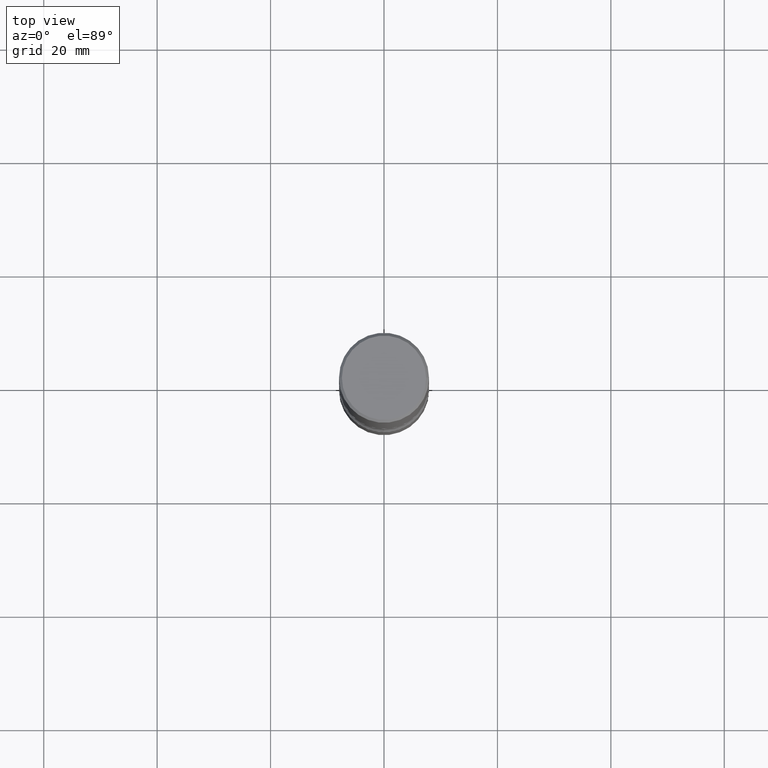
[diagram: clean part render]
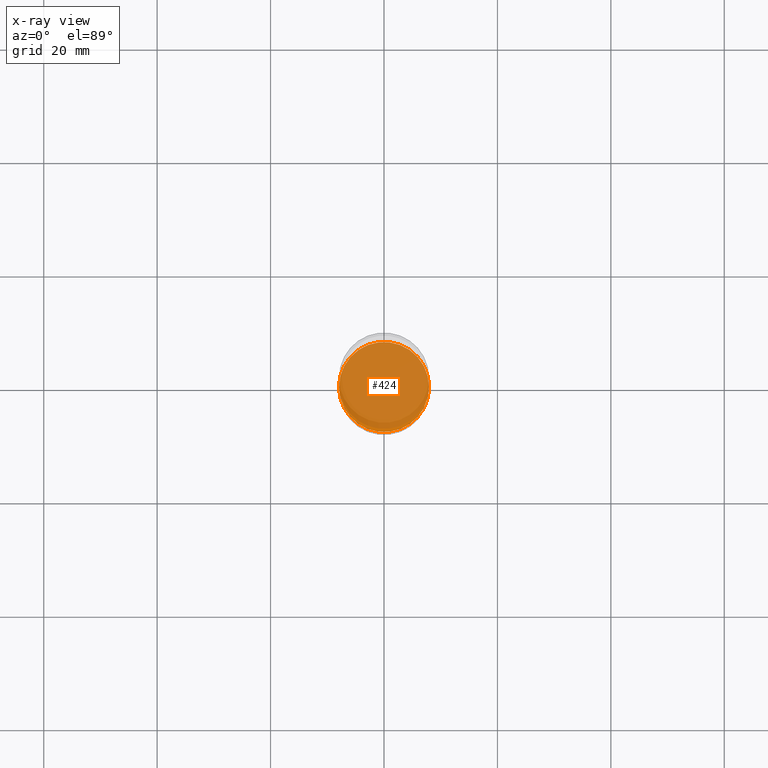
[diagram: x-ray — body ghosted, one internal face saturated and labeled with its STEP entity id]
A machine part, top view, then the same camera in x-ray: the body is ghosted and one INTERNAL B-rep face — a face not visible from any outside direction — is saturated and labeled: STEP entity #424.
In plain terms, the highlighted planar face has unit normal (0, -0, -1).
Its self-contained STEP definition (entity closure, byte-faithful):
#73 = DIRECTION ( 'NONE',  ( 1.000000000000000000, -6.982962677686265133E-15, 0.000000000000000000 ) ) ;
#101 = DIRECTION ( 'NONE',  ( -2.445468806185136597E-29, 3.491481338843145583E-15, 1.000000000000000000 ) ) ;
#105 = DIRECTION ( 'NONE',  ( 2.438088387897960049E-29, -3.491481338843145188E-15, -1.000000000000000000 ) ) ;
#127 = ORIENTED_EDGE ( 'NONE', *, *, #532, .T. ) ;
#151 = DIRECTION ( 'NONE',  ( -1.000000000000000000, 6.982962677686265922E-15, -4.876176775795935793E-29 ) ) ;
#234 = CARTESIAN_POINT ( 'NONE',  ( 9.170508023194261117E-29, -1.309305502066179584E-14, -3.749999999999999556 ) ) ;
#238 = ORIENTED_EDGE ( 'NONE', *, *, #415, .T. ) ;
#255 = AXIS2_PLACEMENT_3D ( 'NONE', #234, #105, #151 ) ;
#267 = PLANE ( 'NONE',  #255 ) ;
#289 = CARTESIAN_POINT ( 'NONE',  ( 9.170508023194261117E-29, -1.309305502066179584E-14, -3.749999999999999556 ) ) ;
#291 = EDGE_LOOP ( 'NONE', ( #127, #238 ) ) ;
#352 = DIRECTION ( 'NONE',  ( 1.000000000000000000, -6.982962677686265133E-15, 0.000000000000000000 ) ) ;
#378 = AXIS2_PLACEMENT_3D ( 'NONE', #554, #101, #352 ) ;
#398 = CIRCLE ( 'NONE', #444, 0.3125000000000001665 ) ;
#408 = CARTESIAN_POINT ( 'NONE',  ( 0.3125000000000001665, -1.527523085743875418E-14, -3.749999999999999556 ) ) ;
#411 = VERTEX_POINT ( 'NONE', #437 ) ;
#415 = EDGE_CURVE ( 'NONE', #411, #468, #544, .T. ) ;
#424 = ADVANCED_FACE ( 'NONE', ( #496 ), #267, .F. ) ;
#437 = CARTESIAN_POINT ( 'NONE',  ( -0.3125000000000001665, -1.295004036802315562E-14, -3.749999999999999556 ) ) ;
#444 = AXIS2_PLACEMENT_3D ( 'NONE', #289, #467, #73 ) ;
#467 = DIRECTION ( 'NONE',  ( -2.445468806185136597E-29, 3.491481338843145583E-15, 1.000000000000000000 ) ) ;
#468 = VERTEX_POINT ( 'NONE', #408 ) ;
#496 = FACE_OUTER_BOUND ( 'NONE', #291, .T. ) ;
#532 = EDGE_CURVE ( 'NONE', #468, #411, #398, .T. ) ;
#544 = CIRCLE ( 'NONE', #378, 0.3125000000000001665 ) ;
#554 = CARTESIAN_POINT ( 'NONE',  ( 9.170508023194261117E-29, -1.309305502066179584E-14, -3.749999999999999556 ) ) ;